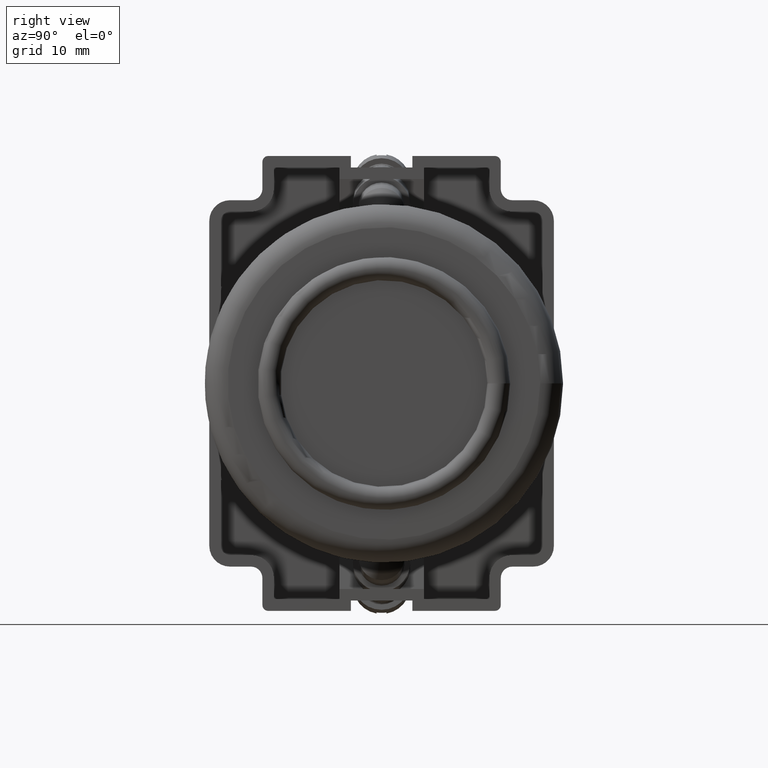
[diagram: clean part render]
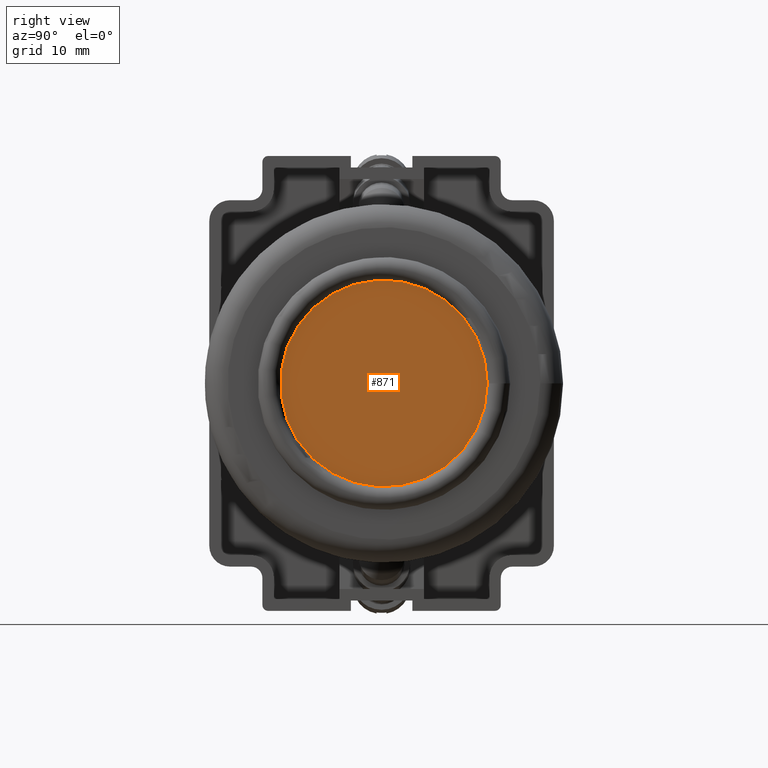
[diagram: same view with one face highlighted and labeled with its STEP entity id]
A machine part, right view. The second image highlights one B-rep face of the part: STEP entity #871.
In plain terms, the highlighted planar face has unit normal (1, 0, 0).
Its self-contained STEP definition (entity closure, byte-faithful):
#851=CARTESIAN_POINT('',(4.748486254077104,9.920334286870929,0.0));
#852=VERTEX_POINT('',#851);
#853=CARTESIAN_POINT('',(4.748486254077104,0.920334286870927,0.0));
#854=DIRECTION('',(1.0,0.0,0.0));
#855=DIRECTION('',(0.0,1.0,0.0));
#856=AXIS2_PLACEMENT_3D('',#853,#854,#855);
#857=CIRCLE('',#856,9.000000000000002);
#858=EDGE_CURVE('',#852,#852,#857,.T.);
#863=CARTESIAN_POINT('',(4.748486254077103,5.420334286870928,0.0));
#864=DIRECTION('',(1.0,0.0,0.0));
#865=DIRECTION('',(0.0,0.0,-1.0));
#866=AXIS2_PLACEMENT_3D('',#863,#864,#865);
#867=PLANE('',#866);
#868=ORIENTED_EDGE('',*,*,#858,.T.);
#869=EDGE_LOOP('',(#868));
#870=FACE_OUTER_BOUND('',#869,.T.);
#871=ADVANCED_FACE('',(#870),#867,.T.);